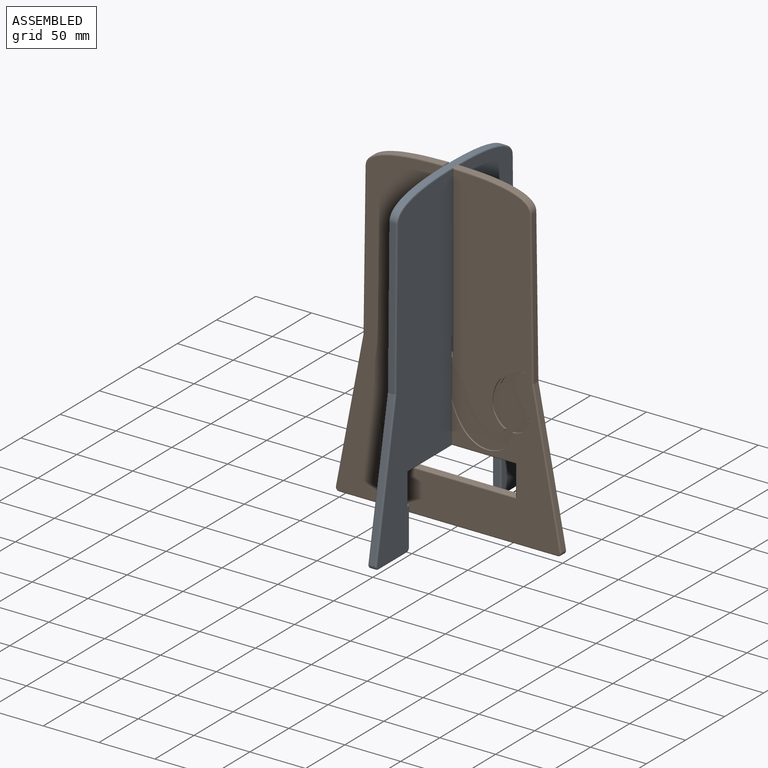
[diagram: assembled view]
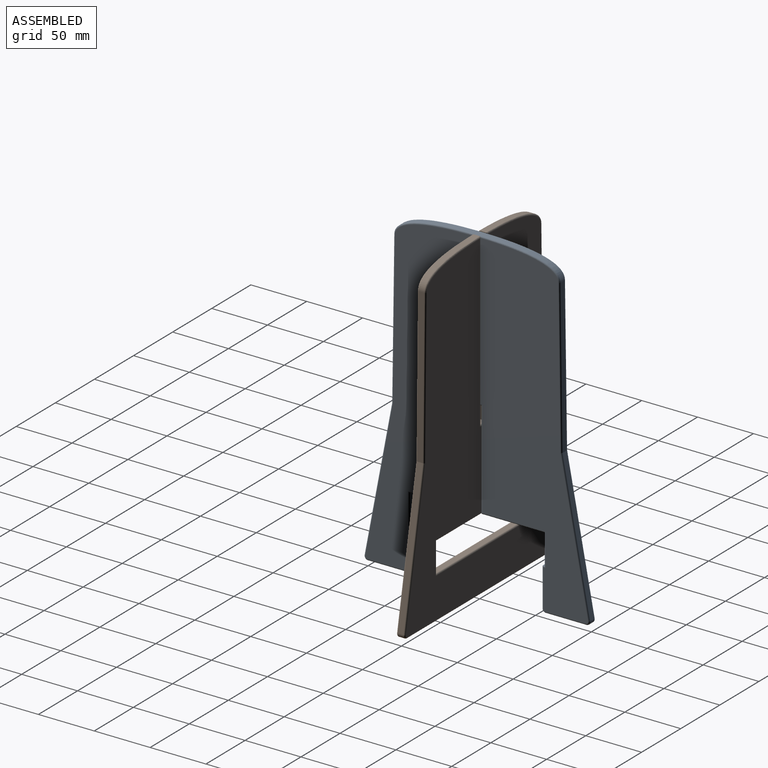
[diagram: assembled view, second angle]
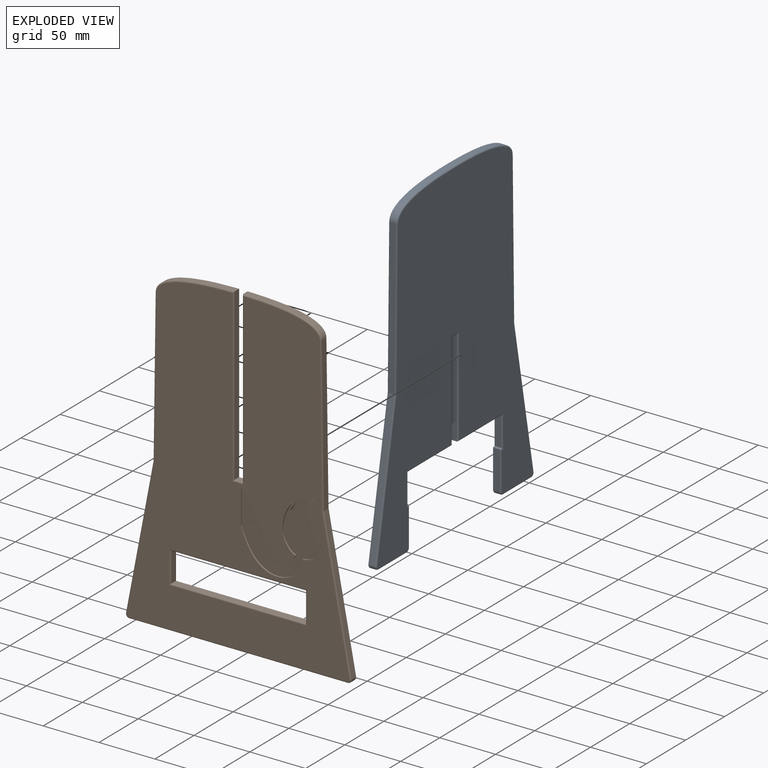
[diagram: exploded view]
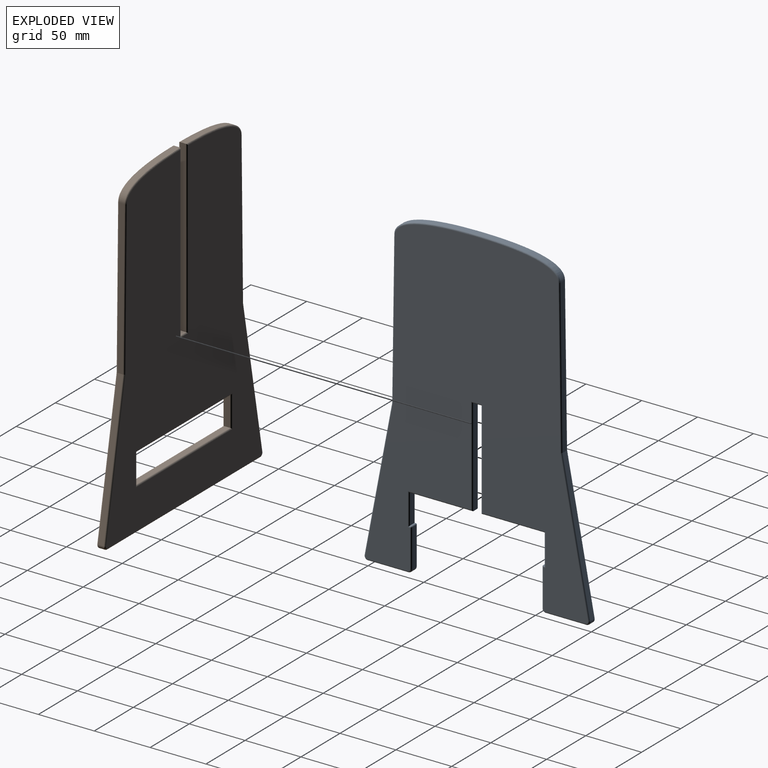
[diagram: exploded view, second angle]
ASSEMBLY  parts=2 mates=2
PART A: 77 faces, bbox 202.4x289.8x7.6 mm
  f0: cylinder r=3.17mm len=5.08mm, axis (0,0,-1), area 28.4mm2, adj f1,f24,f47,f72
  f1: plane 36.17x5.08mm, normal (0,-1,0), area 183.7mm2, adj f0,f2,f45,f70
  f2: cylinder r=3.17mm len=5.08mm, axis (0,0,-1), area 25.3mm2, adj f1,f3,f43,f68
  f3: plane 33.97x5.08mm, normal (1,0,0), area 172.6mm2, adj f2,f4,f41,f66
  f4: cylinder r=0.95mm len=5.08mm, axis (0,0,-1), area 7.6mm2, adj f3,f5,f39,f64
  f5: plane 5.08x0.95mm, normal (0,1,0), area 4.8mm2, adj f4,f6,f37,f62
  f6: plane 26.67x5.08mm, normal (1,0,0), area 135.5mm2, adj f5,f7,f35,f60
  f7: plane 56.52x5.08mm, normal (0,-1,0), area 287.1mm2, adj f6,f8,f33,f58
  f8: plane 87.63x5.08mm, normal (1,0,0), area 445.2mm2, adj f7,f9,f31,f56
  f9: plane 7.62x5.08mm, normal (0,-1,0), area 38.7mm2, adj f8,f10,f29,f54
  f10: plane 87.63x5.08mm, normal (-1,0,0), area 445.2mm2, adj f9,f11,f27,f52
  f11: plane 56.52x5.08mm, normal (0,-1,0), area 287.1mm2, adj f10,f12,f28,f53
  f12: plane 26.67x5.08mm, normal (-1,0,0), area 135.5mm2, adj f11,f13,f30,f55
  f13: plane 5.08x0.95mm, normal (0,1,0), area 4.8mm2, adj f12,f14,f32,f57
  f14: cylinder r=0.95mm len=5.08mm, axis (0,0,-1), area 7.6mm2, adj f13,f15,f34,f59
  f15: plane 33.97x5.08mm, normal (-1,0,0), area 172.6mm2, adj f14,f16,f36,f61
  f16: cylinder r=3.17mm len=5.08mm, axis (0,0,-1), area 25.3mm2, adj f15,f17,f38,f63
  f17: plane 36.17x5.08mm, normal (0,-1,0), area 183.7mm2, adj f16,f18,f40,f65
  f18: cylinder r=3.17mm len=5.08mm, axis (0,0,-1), area 28.4mm2, adj f17,f19,f42,f67
  f19: plane 129.58x24.68mm, normal (0.98,0.19,0), area 670.1mm2, adj f18,f20,f44,f69
  f20: plane 137.16x5.08mm, normal (1,0.01,0), area 696.8mm2, adj f19,f21,f46,f71
  f21: extruded ~74.32x19.05mm, area 412.3mm2, adj f20,f22,f48,f73
  f22: extruded ~74.32x19.05mm, area 412.3mm2, adj f21,f23,f50,f75
  f23: plane 137.16x5.08mm, normal (-1,0.01,0), area 696.8mm2, adj f22,f24,f51,f76
  f24: plane 129.58x24.68mm, normal (-0.98,0.19,0), area 670.1mm2, adj f0,f23,f49,f74
  f25: plane 287.02x199.34mm, normal (0,0,1), area 36822.2mm2, adj f52,f53,f54,f55,f56,f57,f58,f60
  f26: plane 287.02x199.34mm, normal (0,0,-1), area 36822.4mm2, adj f27,f28,f29,f30,f31,f32,f33,f35
  f27: cylinder r=1.27mm len=88.9mm, axis (0,-1,0), area 174.8mm2, adj f10,f26,f28,f29
  f28: cylinder r=1.27mm len=57.79mm, axis (1,0,0), area 112.7mm2, adj f11,f26,f27,f30
  f29: cylinder r=1.27mm len=10.16mm, axis (1,0,0), area 17mm2, adj f9,f26,f27,f31
  f30: cylinder r=1.27mm len=29.21mm, axis (0,-1,0), area 55mm2, adj f12,f26,f28,f32
  f31: cylinder r=1.27mm len=88.9mm, axis (0,1,0), area 174.8mm2, adj f8,f26,f29,f33
  f32: cylinder r=1.27mm len=2.22mm, axis (-1,0,0), area 2.5mm2, adj f13,f26,f30,f34
  f33: cylinder r=1.27mm len=57.79mm, axis (1,0,0), area 112.7mm2, adj f7,f26,f31,f35
  f34: bspline ~1.56x1.27mm, area 1.9mm2, adj f14,f32,f36
  f35: cylinder r=1.27mm len=29.21mm, axis (0,1,0), area 55mm2, adj f6,f26,f33,f37
  f36: cylinder r=1.27mm len=33.97mm, axis (0,-1,0), area 67.5mm2, adj f15,f26,f34,f38
  f37: cylinder r=1.27mm len=2.22mm, axis (-1,0,0), area 2.5mm2, adj f5,f26,f35,f39
  f38: torus R=1.91mm, axis (0,0,1), area 8.5mm2, adj f16,f26,f36,f40
  f39: bspline ~1.56x1.27mm, area 1.9mm2, adj f4,f37,f41
  f40: cylinder r=1.27mm len=36.17mm, axis (1,0,0), area 72.2mm2, adj f17,f26,f38,f42
  f41: cylinder r=1.27mm len=33.97mm, axis (0,1,0), area 67.5mm2, adj f3,f26,f39,f43
  f42: torus R=1.91mm, axis (0,0,1), area 9.5mm2, adj f18,f26,f40,f44
  f43: torus R=1.91mm, axis (0,0,1), area 8.5mm2, adj f2,f26,f41,f45
  f44: cylinder r=1.27mm len=129.93mm, axis (-0.19,0.98,0), area 263.3mm2, adj f19,f26,f42,f46
  f45: cylinder r=1.27mm len=36.17mm, axis (1,0,0), area 72.2mm2, adj f1,f26,f43,f47
  f46: cylinder r=1.27mm len=137.29mm, axis (-0.01,1,0), area 273.8mm2, adj f20,f26,f44,f48
  f47: torus R=1.91mm, axis (0,0,1), area 9.5mm2, adj f0,f26,f45,f49
  f48: bspline ~99.49x25.63mm, area 160.5mm2, adj f21,f26,f46,f50
  f49: cylinder r=1.27mm len=129.93mm, axis (-0.19,-0.98,0), area 263.3mm2, adj f24,f26,f47,f51
  f50: bspline ~99.49x25.63mm, area 160.5mm2, adj f22,f26,f48,f51
  f51: cylinder r=1.27mm len=137.29mm, axis (-0.01,-1,0), area 273.8mm2, adj f23,f26,f49,f50
  f52: cylinder r=1.27mm len=88.9mm, axis (0,1,0), area 174.8mm2, adj f10,f25,f53,f54
  f53: cylinder r=1.27mm len=57.79mm, axis (-1,0,0), area 112.7mm2, adj f11,f25,f52,f55
  f54: cylinder r=1.27mm len=10.16mm, axis (-1,0,0), area 17mm2, adj f9,f25,f52,f56
  f55: cylinder r=1.27mm len=29.21mm, axis (0,1,0), area 55mm2, adj f12,f25,f53,f57
  f56: cylinder r=1.27mm len=88.9mm, axis (0,-1,0), area 174.8mm2, adj f8,f25,f54,f58
  f57: cylinder r=1.27mm len=2.22mm, axis (1,0,0), area 2.5mm2, adj f13,f25,f55,f59
  f58: cylinder r=1.27mm len=57.79mm, axis (-1,0,0), area 112.7mm2, adj f7,f25,f56,f60
  f59: bspline ~1.56x1.27mm, area 1.9mm2, adj f14,f57,f61
  f60: cylinder r=1.27mm len=29.21mm, axis (0,-1,0), area 55mm2, adj f6,f25,f58,f62
  f61: cylinder r=1.27mm len=33.97mm, axis (0,1,0), area 67.5mm2, adj f15,f25,f59,f63
  f62: cylinder r=1.27mm len=2.22mm, axis (1,0,0), area 2.5mm2, adj f5,f25,f60,f64
  f63: torus R=1.91mm, axis (0,0,1), area 8.5mm2, adj f16,f25,f61,f65
  f64: bspline ~1.56x1.27mm, area 1.9mm2, adj f4,f62,f66
  f65: cylinder r=1.27mm len=36.17mm, axis (-1,0,0), area 72.2mm2, adj f17,f25,f63,f67
  f66: cylinder r=1.27mm len=33.97mm, axis (0,-1,0), area 67.5mm2, adj f3,f25,f64,f68
  f67: torus R=1.91mm, axis (0,0,1), area 9.5mm2, adj f18,f25,f65,f69
  f68: torus R=1.91mm, axis (0,0,1), area 8.5mm2, adj f2,f25,f66,f70
  f69: cylinder r=1.27mm len=129.93mm, axis (0.19,-0.98,0), area 263.3mm2, adj f19,f25,f67,f71
  f70: cylinder r=1.27mm len=36.17mm, axis (-1,0,0), area 72.2mm2, adj f1,f25,f68,f72
  f71: cylinder r=1.27mm len=137.29mm, axis (0.01,-1,0), area 273.8mm2, adj f20,f25,f69,f73
  f72: torus R=1.91mm, axis (0,0,1), area 9.5mm2, adj f0,f25,f70,f74
  f73: bspline ~99.49x25.63mm, area 160.5mm2, adj f21,f25,f71,f75
  f74: cylinder r=1.27mm len=129.93mm, axis (0.19,0.98,0), area 263.3mm2, adj f24,f25,f72,f76
  f75: bspline ~80.69x25.63mm, area 160.5mm2, adj f22,f25,f73,f76
  f76: cylinder r=1.27mm len=137.29mm, axis (0.01,1,0), area 273.8mm2, adj f23,f25,f74,f75
PART B: 62 faces, bbox 202.4x289.8x7.6 mm
  f0: plane 287x199.34mm, normal (0,0,1), area 38088.7mm2, adj f34,f35,f36,f37,f38,f39,f40,f41
  f1: cylinder r=3.17mm len=5.08mm, axis (0,0,-1), area 28.4mm2, adj f2,f16,f26,f42
  f2: plane 129.58x24.68mm, normal (0.98,0.19,0), area 670.1mm2, adj f1,f3,f24,f40
  f3: plane 137.16x5.08mm, normal (1,0.01,0), area 696.8mm2, adj f2,f4,f22,f38
  f4: extruded ~70.51x19.04mm, area 393mm2, adj f3,f5,f20,f36
  f5: plane 152.39x5.08mm, normal (-1,0,0), area 774.1mm2, adj f4,f6,f18,f34
  f6: plane 7.62x5.08mm, normal (0,1,0), area 38.7mm2, adj f5,f7,f19,f35
  f7: plane 152.39x5.08mm, normal (1,0,0), area 774.1mm2, adj f6,f8,f21,f37
  f8: extruded ~70.51x19.04mm, area 393mm2, adj f7,f9,f23,f39
  f9: plane 137.16x5.08mm, normal (-1,0.01,0), area 696.8mm2, adj f8,f10,f25,f41
  f10: plane 129.58x24.68mm, normal (-0.98,0.19,0), area 670.1mm2, adj f9,f11,f27,f43
  f11: cylinder r=3.17mm len=5.08mm, axis (0,0,-1), area 28.4mm2, adj f10,f16,f29,f45
  f12: plane 26.67x5.08mm, normal (1,0,0), area 135.5mm2, adj f13,f15,f31,f47
  f13: plane 120.65x5.08mm, normal (0,-1,0), area 612.9mm2, adj f12,f14,f30,f46
  f14: plane 26.67x5.08mm, normal (-1,0,0), area 135.5mm2, adj f13,f15,f32,f48
  f15: plane 120.65x5.08mm, normal (0,1,0), area 612.9mm2, adj f12,f14,f33,f49
  f16: plane 195.53x5.08mm, normal (0,-1,0), area 993.3mm2, adj f1,f11,f28,f44
  f17: plane 287x199.34mm, normal (0,0,-1), area 40411.2mm2, adj f18,f19,f20,f21,f22,f23,f24,f25
  f18: cylinder r=1.27mm len=153.66mm, axis (0,-1,0), area 304mm2, adj f5,f17,f19,f20
  f19: cylinder r=1.27mm len=10.16mm, axis (-1,0,0), area 17.7mm2, adj f6,f17,f18,f21
  f20: bspline ~72.84x26.72mm, area 151.6mm2, adj f4,f17,f18,f22
  f21: cylinder r=1.27mm len=153.66mm, axis (0,1,0), area 304mm2, adj f7,f17,f19,f23
  f22: cylinder r=1.27mm len=137.29mm, axis (-0.01,1,0), area 273.8mm2, adj f3,f17,f20,f24
  f23: bspline ~72.84x26.72mm, area 151.6mm2, adj f8,f17,f21,f25
  f24: cylinder r=1.27mm len=129.93mm, axis (-0.19,0.98,0), area 263.3mm2, adj f2,f17,f22,f26
  f25: cylinder r=1.27mm len=137.29mm, axis (-0.01,-1,0), area 273.8mm2, adj f9,f17,f23,f27
  f26: torus R=1.91mm, axis (0,0,1), area 9.5mm2, adj f1,f17,f24,f28
  f27: cylinder r=1.27mm len=129.93mm, axis (-0.19,-0.98,0), area 263.3mm2, adj f10,f17,f25,f29
  f28: cylinder r=1.27mm len=195.53mm, axis (1,0,0), area 390.1mm2, adj f16,f17,f26,f29
  f29: torus R=1.91mm, axis (0,0,1), area 9.5mm2, adj f11,f17,f27,f28
  f30: cylinder r=1.27mm len=123.19mm, axis (1,0,0), area 243.2mm2, adj f13,f17,f31,f32
  f31: cylinder r=1.27mm len=29.21mm, axis (0,1,0), area 55.7mm2, adj f12,f17,f30,f33
  f32: cylinder r=1.27mm len=29.21mm, axis (0,-1,0), area 55.7mm2, adj f14,f17,f30,f33
  f33: cylinder r=1.27mm len=123.19mm, axis (-1,0,0), area 243.2mm2, adj f15,f17,f31,f32
  f34: cylinder r=1.27mm len=153.66mm, axis (0,1,0), area 304mm2, adj f0,f5,f35,f36
  f35: cylinder r=1.27mm len=10.16mm, axis (1,0,0), area 17.7mm2, adj f0,f6,f34,f37
  f36: bspline ~72.84x26.72mm, area 151.6mm2, adj f0,f4,f34,f38
  f37: cylinder r=1.27mm len=153.66mm, axis (0,-1,0), area 304mm2, adj f0,f7,f35,f39
  f38: cylinder r=1.27mm len=137.29mm, axis (0.01,-1,0), area 273.8mm2, adj f0,f3,f36,f40
  f39: bspline ~72.84x26.72mm, area 151.6mm2, adj f0,f8,f37,f41
  f40: cylinder r=1.27mm len=129.93mm, axis (0.19,-0.98,0), area 263.3mm2, adj f0,f2,f38,f42
  f41: cylinder r=1.27mm len=137.29mm, axis (0.01,1,0), area 273.8mm2, adj f0,f9,f39,f43
  f42: torus R=1.91mm, axis (0,0,1), area 9.5mm2, adj f0,f1,f40,f44
  f43: cylinder r=1.27mm len=129.93mm, axis (0.19,0.98,0), area 263.3mm2, adj f0,f10,f41,f45
  f44: cylinder r=1.27mm len=195.53mm, axis (-1,0,0), area 390.1mm2, adj f0,f16,f42,f45
  f45: torus R=1.91mm, axis (0,0,1), area 9.5mm2, adj f0,f11,f43,f44
  f46: cylinder r=1.27mm len=123.19mm, axis (-1,0,0), area 243.2mm2, adj f0,f13,f47,f48
  f47: cylinder r=1.27mm len=29.21mm, axis (0,-1,0), area 55.7mm2, adj f0,f12,f46,f49
  f48: cylinder r=1.27mm len=29.21mm, axis (0,1,0), area 55.7mm2, adj f0,f14,f46,f49
  f49: cylinder r=1.27mm len=123.19mm, axis (1,0,0), area 243.2mm2, adj f0,f15,f47,f48
  f50: extruded ~48.84x47.64mm, area 96.5mm2, adj f0,f51,f60,f61
  f51: plane 30.64x1.27mm, normal (1,0,0), area 38.9mm2, adj f0,f50,f52,f61
  f52: extruded ~55.12x32.95mm, area 105.6mm2, adj f0,f51,f53,f61
  f53: extruded ~17.56x16.99mm, area 34.1mm2, adj f0,f52,f54,f61
  f54: extruded ~6.32x4.95mm, area 10.3mm2, adj f0,f53,f55,f61
  f55: extruded ~34.65x8.52mm, area 47.1mm2, adj f0,f54,f56,f61
  f56: extruded ~3.35x1.99mm, area 5mm2, adj f0,f55,f57,f61
  f57: extruded ~8.41x6.78mm, area 13.9mm2, adj f0,f56,f58,f61
  f58: extruded ~21.43x14.51mm, area 34.6mm2, adj f0,f57,f59,f61
  f59: extruded ~4.72x1.27mm, area 6mm2, adj f0,f58,f60,f61
  f60: extruded ~40.55x11.69mm, area 59.6mm2, adj f0,f50,f59,f61
  f61: plane 72.68x71.75mm, normal (0,0,1), area 2322.4mm2, adj f50,f51,f52,f53,f54,f55,f56,f57
PLACE A rot(axis=(0.58,0.58,0.58),120deg) t=(-3.81,-101.6,0)mm
PLACE B rot(axis=(1,0,0),90deg) t=(-101.6,3.81,0)mm
MATE planar B.f17 <-> A.f10  axis (0,1,0) through (0,3.81,140.08)mm
MATE planar B.f7 <-> A.f26  axis (1,0,0) through (-3.81,0,213.35)mm
